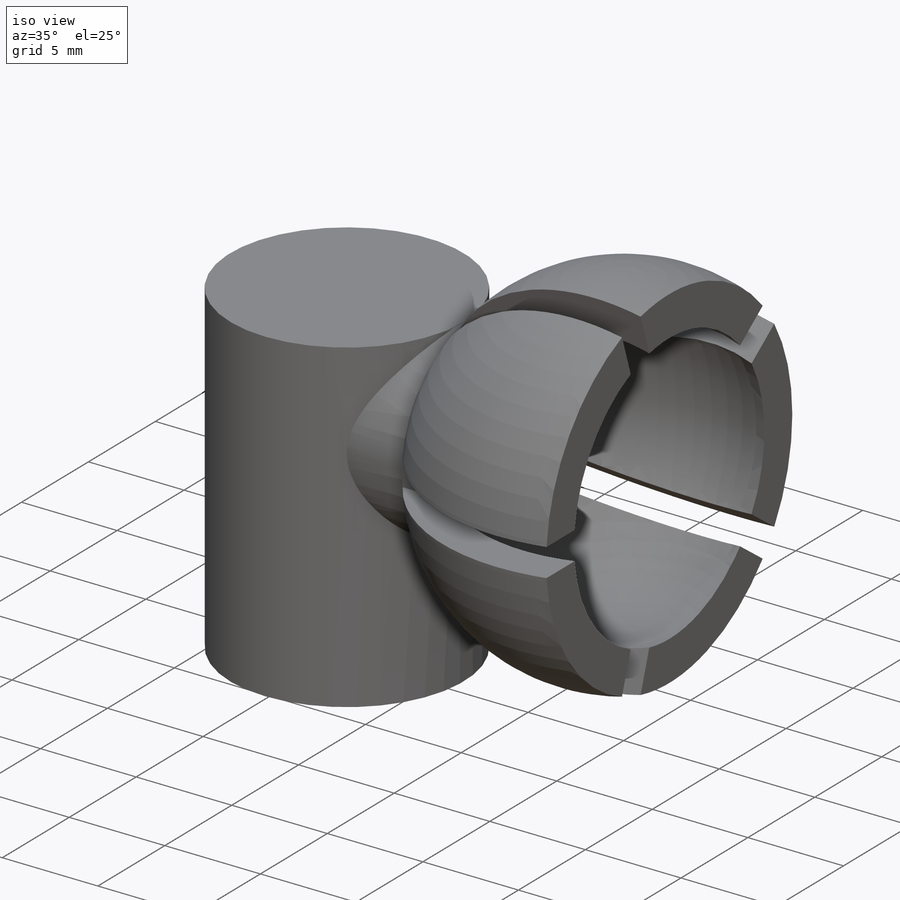
[diagram: iso view]
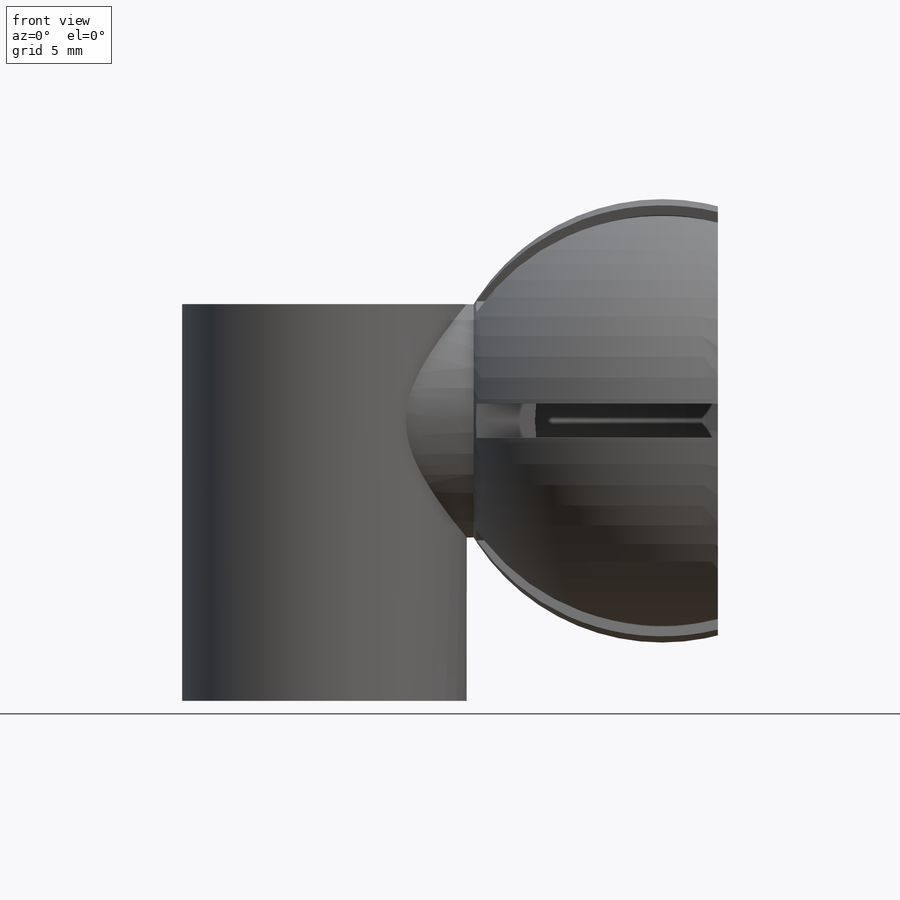
[diagram: front view]
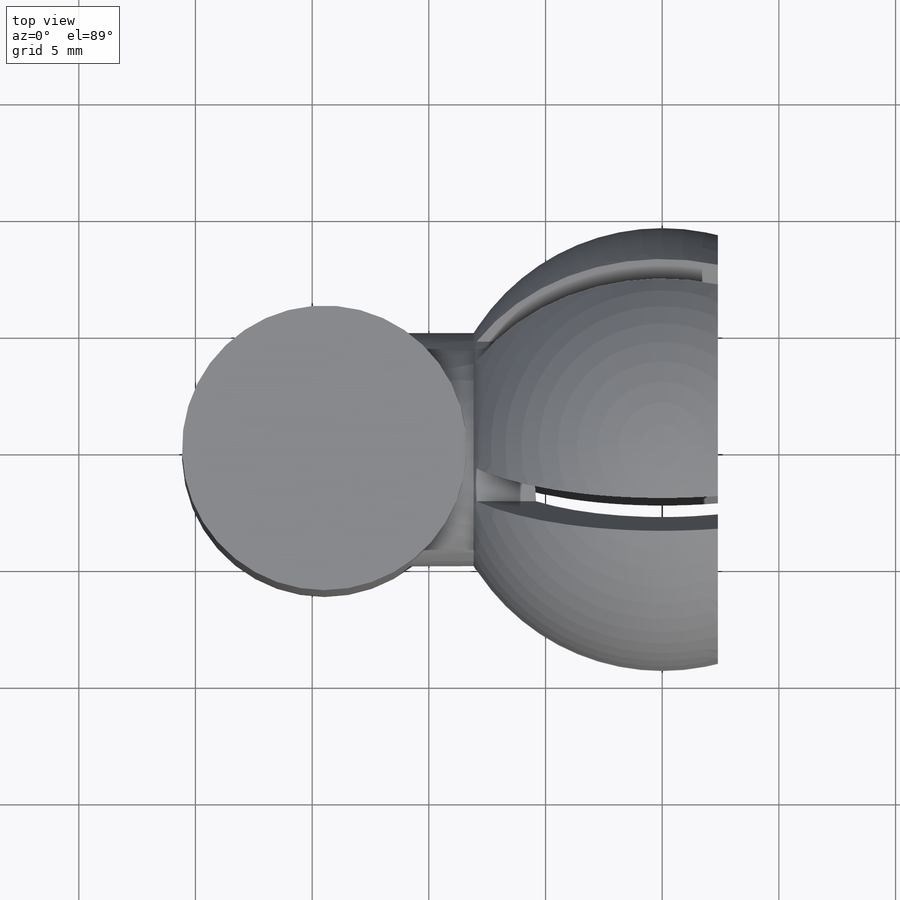
[diagram: top view]
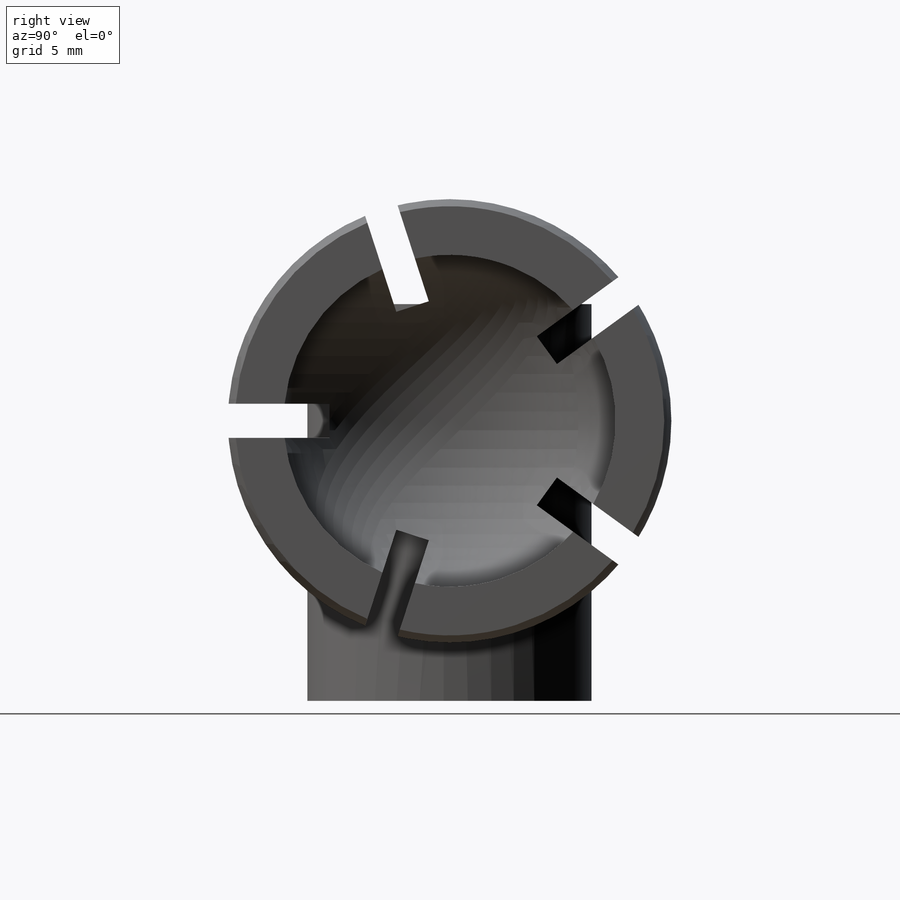
[diagram: right view]
SOLIDWORKS PART (.sldprt)
format: sldprt  version: not decoded by parser v0  size: 392,704 bytes
history: native  units: mm
features: sketch x11, cut_extrude x5, extrude x5, plane x3, material x1, revolve x1 (+9 scaffold rows collapsed)
feature tree (35):
  scaffold x9  (default folders/planes/origin — collapsed)
  material  "Material <sin especificar>"
  plane  "Alzado"
  plane  "Planta"
  plane  "Vista lateral"
  sketch  "Croquis1"  dims[D1=15.0mm D2=2.0mm]
  revolve  "Revolución2"  Angle=360deg
  sketch  "Croquis2"
  cut_extrude  "Cortar-Extruir1"  Depth=27mm
  sketch  "Croquis3"  dims[D1=5.0]
  cut_extrude  "Cortar-Extruir3"  Depth=27mm
  sketch  "Croquis6"  dims[c1.D1=~7.11752mm c1.D2=8.2mm c2.D1=2.0mm]
  extrude  "Saliente-Extruir3"  Depth=12mm
  sketch  "Croquis7"  dims[D1=0.0mm]
  extrude  "Saliente-Extruir4"  Depth=4mm
  sketch  "Croquis8"  dims[D1=10.0mm]
  extrude  "Saliente-Extruir5"  Depth=13mm
  sketch  "Croquis9"
  cut_extrude  "Cortar-Extruir4"  Depth=13mm
  sketch  "Croquis10"
  cut_extrude  "Cortar-Extruir5"  Depth=19mm
  sketch  "Croquis11"
  cut_extrude  "Cortar-Extruir6"  Depth=19mm
  sketch  "Croquis12"  dims[D1=0.0mm]
  extrude  "Saliente-Extruir6"  [1 undecoded]
  sketch  "Croquis4"  dims[D1=8.0mm D2=4.85mm]
  extrude  "Saliente-Extruir2"  Depth=12mm
decode coverage: 17 of 22 modeling features carry decoded parameters
note: ~ marks probable driven/reference dimensions
note: 1 parameter value undecoded
note: suppression state not decoded; provenance and decode notes live in map.json
